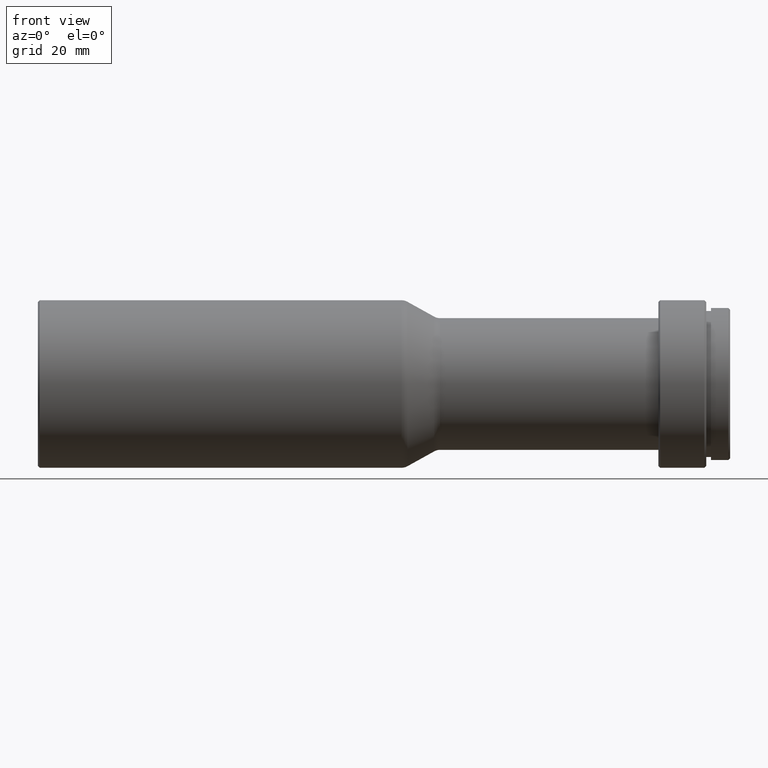
[diagram: clean part render]
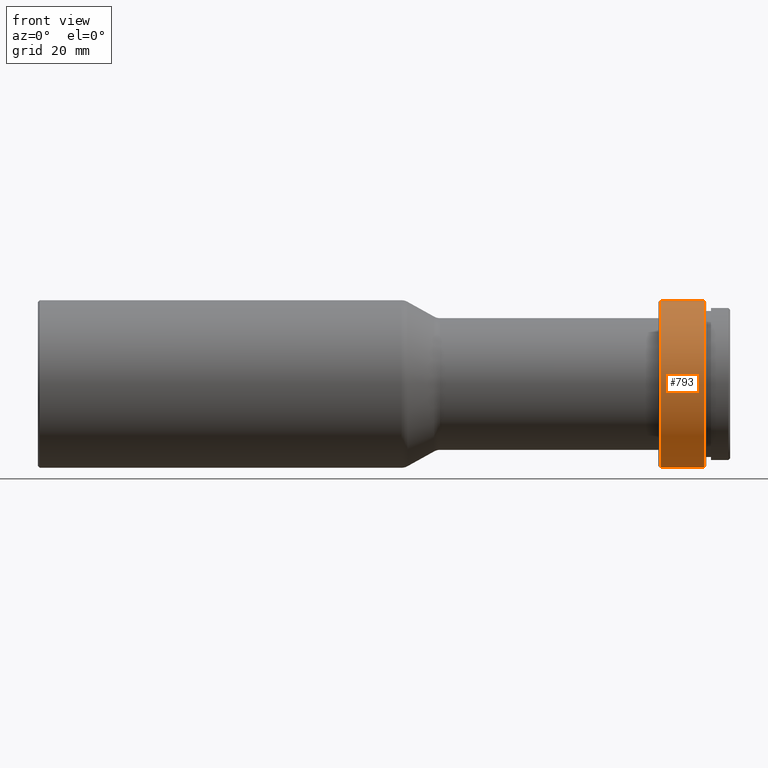
[diagram: same view with one face highlighted and labeled with its STEP entity id]
A machine part, front view. The second image highlights one B-rep face of the part: STEP entity #793.
In plain terms, the highlighted cylindrical surface (partial cylindrical patch) has radius 14 mm, axis along (-1, -0, -0).
Its self-contained STEP definition (entity closure, byte-faithful):
#9 = VERTEX_POINT ( 'NONE', #467 ) ;
#45 = CARTESIAN_POINT ( 'NONE',  ( 111.4000000000000200, 1.714505518806294600E-015, -14.00000000000000000 ) ) ;
#62 = DIRECTION ( 'NONE',  ( -1.000000000000000000, -0.0000000000000000000, -0.0000000000000000000 ) ) ;
#92 = LINE ( 'NONE', #483, #748 ) ;
#108 = DIRECTION ( 'NONE',  ( -1.000000000000000000, -0.0000000000000000000, -0.0000000000000000000 ) ) ;
#132 = ORIENTED_EDGE ( 'NONE', *, *, #564, .T. ) ;
#191 = EDGE_LOOP ( 'NONE', ( #492, #132, #649, #731 ) ) ;
#262 = CARTESIAN_POINT ( 'NONE',  ( 0.0000000000000000000, 0.0000000000000000000, 0.0000000000000000000 ) ) ;
#269 = AXIS2_PLACEMENT_3D ( 'NONE', #349, #108, #616 ) ;
#281 = VERTEX_POINT ( 'NONE', #745 ) ;
#284 = EDGE_CURVE ( 'NONE', #712, #787, #618, .T. ) ;
#318 = CARTESIAN_POINT ( 'NONE',  ( 0.0000000000000000000, 1.714505518806294600E-015, -14.00000000000000000 ) ) ;
#326 = CARTESIAN_POINT ( 'NONE',  ( 104.0000000000000100, 0.0000000000000000000, 0.0000000000000000000 ) ) ;
#330 = CIRCLE ( 'NONE', #804, 14.00000000000000000 ) ;
#349 = CARTESIAN_POINT ( 'NONE',  ( 111.4000000000000200, 0.0000000000000000000, 0.0000000000000000000 ) ) ;
#390 = CYLINDRICAL_SURFACE ( 'NONE', #473, 14.00000000000000000 ) ;
#405 = DIRECTION ( 'NONE',  ( -1.000000000000000000, -0.0000000000000000000, -0.0000000000000000000 ) ) ;
#467 = CARTESIAN_POINT ( 'NONE',  ( 111.4000000000000200, 0.0000000000000000000, 14.00000000000000000 ) ) ;
#473 = AXIS2_PLACEMENT_3D ( 'NONE', #262, #62, #688 ) ;
#483 = CARTESIAN_POINT ( 'NONE',  ( 0.0000000000000000000, 0.0000000000000000000, 14.00000000000000000 ) ) ;
#486 = VECTOR ( 'NONE', #810, 1000.000000000000000 ) ;
#492 = ORIENTED_EDGE ( 'NONE', *, *, #284, .F. ) ;
#497 = CIRCLE ( 'NONE', #269, 14.00000000000000000 ) ;
#514 = CARTESIAN_POINT ( 'NONE',  ( 104.0000000000000100, 0.0000000000000000000, -14.00000000000000000 ) ) ;
#522 = EDGE_CURVE ( 'NONE', #9, #281, #92, .T. ) ;
#564 = EDGE_CURVE ( 'NONE', #712, #9, #497, .T. ) ;
#569 = DIRECTION ( 'NONE',  ( 0.0000000000000000000, 0.0000000000000000000, 1.000000000000000000 ) ) ;
#616 = DIRECTION ( 'NONE',  ( 0.0000000000000000000, 0.0000000000000000000, 1.000000000000000000 ) ) ;
#618 = LINE ( 'NONE', #318, #486 ) ;
#649 = ORIENTED_EDGE ( 'NONE', *, *, #522, .T. ) ;
#688 = DIRECTION ( 'NONE',  ( 0.0000000000000000000, 0.0000000000000000000, 1.000000000000000000 ) ) ;
#712 = VERTEX_POINT ( 'NONE', #45 ) ;
#731 = ORIENTED_EDGE ( 'NONE', *, *, #764, .F. ) ;
#745 = CARTESIAN_POINT ( 'NONE',  ( 104.0000000000000100, 1.714505518806294600E-015, 14.00000000000000000 ) ) ;
#748 = VECTOR ( 'NONE', #405, 1000.000000000000000 ) ;
#757 = DIRECTION ( 'NONE',  ( -1.000000000000000000, -0.0000000000000000000, -0.0000000000000000000 ) ) ;
#764 = EDGE_CURVE ( 'NONE', #787, #281, #330, .T. ) ;
#787 = VERTEX_POINT ( 'NONE', #514 ) ;
#793 = ADVANCED_FACE ( 'NONE', ( #805 ), #390, .T. ) ;
#804 = AXIS2_PLACEMENT_3D ( 'NONE', #326, #757, #569 ) ;
#805 = FACE_OUTER_BOUND ( 'NONE', #191, .T. ) ;
#810 = DIRECTION ( 'NONE',  ( -1.000000000000000000, -0.0000000000000000000, -0.0000000000000000000 ) ) ;